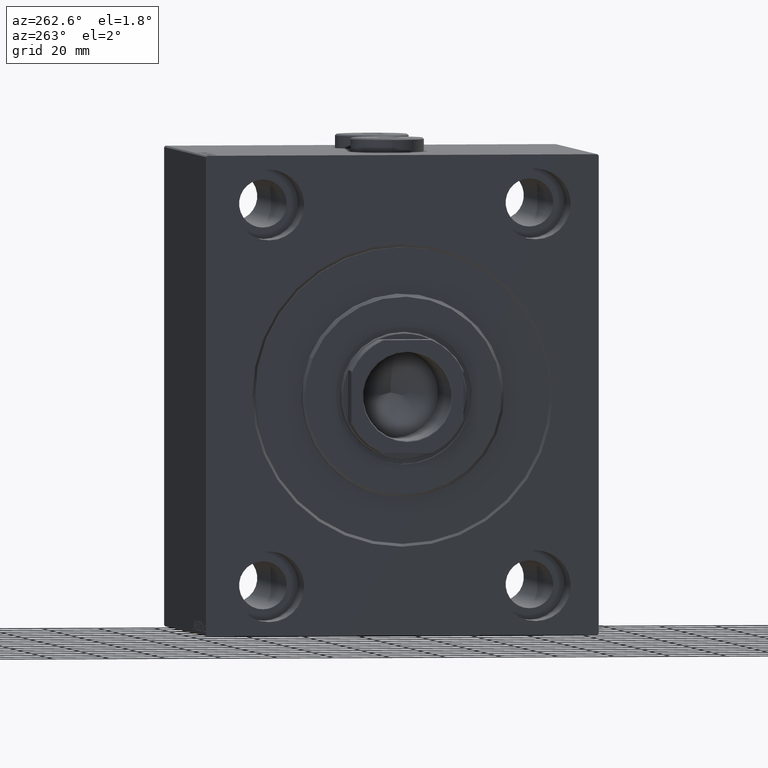
[diagram: clean part render]
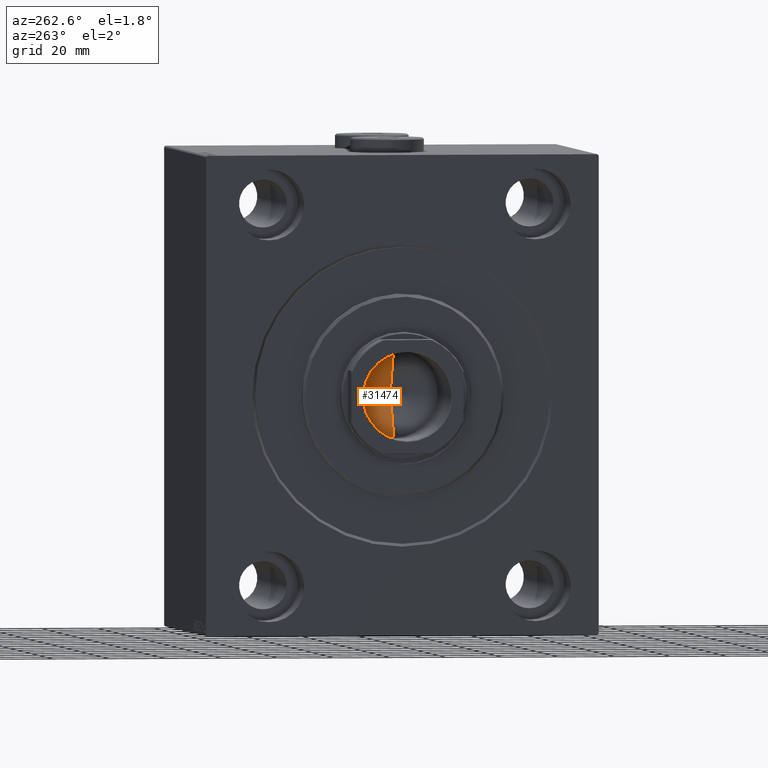
[diagram: same view with one face highlighted and labeled with its STEP entity id]
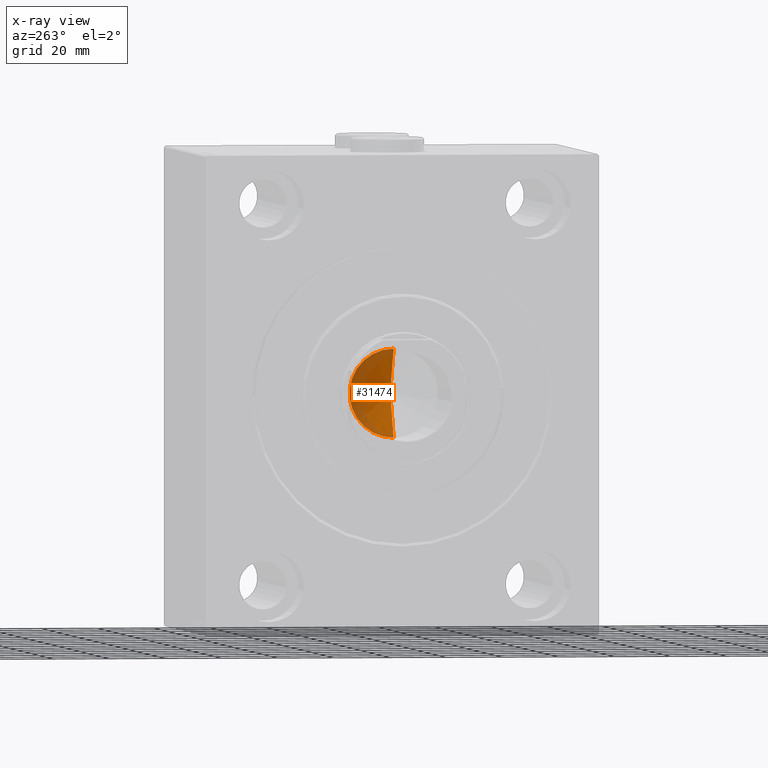
[diagram: x-ray of the same camera — body ghosted, the highlighted face saturated]
A machine part, auxiliary view. The second image highlights one B-rep face of the part: STEP entity #31474.
The next image is the same camera in x-ray: the body ghosted, the highlighted face saturated — about 41% of this face is hidden behind the body in this view.
In plain terms, the highlighted conical surface has half-angle 59 deg.
Its self-contained STEP definition (entity closure, byte-faithful):
#474 = LINE ( 'NONE', #44982, #21148 ) ;
#1522 = VERTEX_POINT ( 'NONE', #43210 ) ;
#1765 = DIRECTION ( 'NONE',  ( -0.8571673007021118895, 1.049727191138618079E-16, 0.5150380749100549327 ) ) ;
#4344 = CARTESIAN_POINT ( 'NONE',  ( 0.000000000000000000, 0.000000000000000000, 26.99999999999998934 ) ) ;
#5119 = VECTOR ( 'NONE', #1765, 1000.000000000000000 ) ;
#5672 = FACE_OUTER_BOUND ( 'NONE', #35213, .T. ) ;
#7525 = DIRECTION ( 'NONE',  ( -0.000000000000000000, -0.000000000000000000, 1.000000000000000000 ) ) ;
#8331 = VERTEX_POINT ( 'NONE', #24083 ) ;
#12510 = CARTESIAN_POINT ( 'NONE',  ( 0.000000000000000000, 0.000000000000000000, 26.99999999999998934 ) ) ;
#15595 = AXIS2_PLACEMENT_3D ( 'NONE', #12510, #43771, #29874 ) ;
#15679 = EDGE_CURVE ( 'NONE', #1522, #33972, #474, .T. ) ;
#15919 = CARTESIAN_POINT ( 'NONE',  ( -15.74999999999999289, 1.928818708657080556E-15, 26.99999999999998934 ) ) ;
#16083 = EDGE_CURVE ( 'NONE', #1522, #8331, #16368, .T. ) ;
#16368 = LINE ( 'NONE', #15919, #5119 ) ;
#17262 = ORIENTED_EDGE ( 'NONE', *, *, #15679, .T. ) ;
#19236 = CONICAL_SURFACE ( 'NONE', #15595, 15.74999999999999289, 1.029744258676653645 ) ;
#21148 = VECTOR ( 'NONE', #41799, 1000.000000000000000 ) ;
#21458 = DIRECTION ( 'NONE',  ( 1.000000000000000000, 0.000000000000000000, 0.000000000000000000 ) ) ;
#23063 = AXIS2_PLACEMENT_3D ( 'NONE', #4344, #7525, #21458 ) ;
#24083 = CARTESIAN_POINT ( 'NONE',  ( -15.74999999999999289, 1.928818708657080556E-15, 26.99999999999998934 ) ) ;
#24551 = CARTESIAN_POINT ( 'NONE',  ( 15.74999999999999289, 0.000000000000000000, 26.99999999999998934 ) ) ;
#25441 = ORIENTED_EDGE ( 'NONE', *, *, #16083, .F. ) ;
#29874 = DIRECTION ( 'NONE',  ( 1.000000000000000000, 0.000000000000000000, 0.000000000000000000 ) ) ;
#31474 = ADVANCED_FACE ( 'NONE', ( #5672 ), #19236, .F. ) ;
#33972 = VERTEX_POINT ( 'NONE', #24551 ) ;
#35213 = EDGE_LOOP ( 'NONE', ( #25441, #17262, #38857 ) ) ;
#38857 = ORIENTED_EDGE ( 'NONE', *, *, #41141, .T. ) ;
#41141 = EDGE_CURVE ( 'NONE', #33972, #8331, #42747, .T. ) ;
#41799 = DIRECTION ( 'NONE',  ( 0.8571673007021118895, 0.000000000000000000, 0.5150380749100549327 ) ) ;
#42747 = CIRCLE ( 'NONE', #23063, 15.74999999999999289 ) ;
#43210 = CARTESIAN_POINT ( 'NONE',  ( -1.199718644317817648E-14, 0.000000000000000000, 17.53644525031590362 ) ) ;
#43771 = DIRECTION ( 'NONE',  ( -0.000000000000000000, -0.000000000000000000, 1.000000000000000000 ) ) ;
#44982 = CARTESIAN_POINT ( 'NONE',  ( 15.74999999999999289, 0.000000000000000000, 26.99999999999998934 ) ) ;